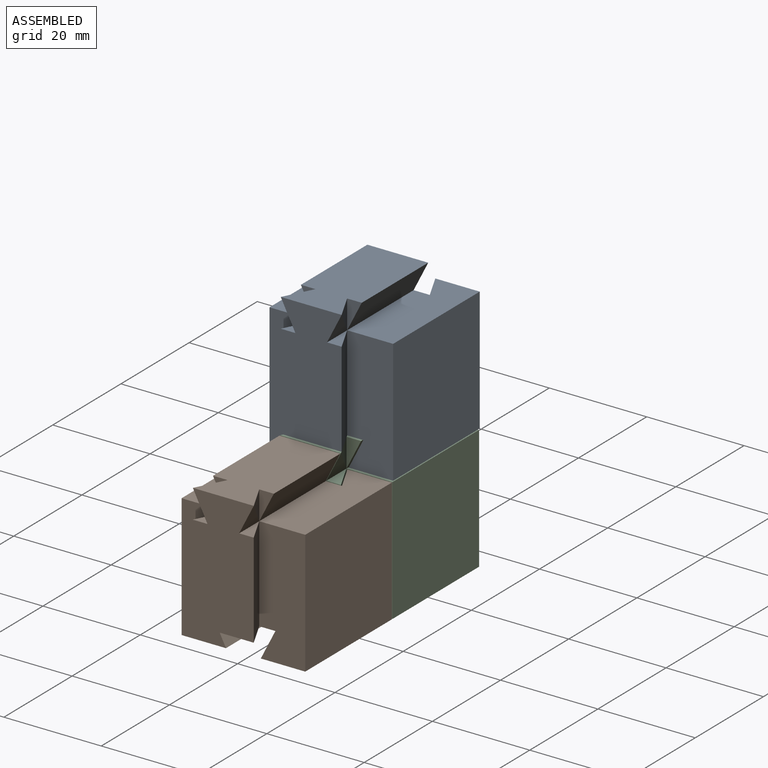
[diagram: assembled view]
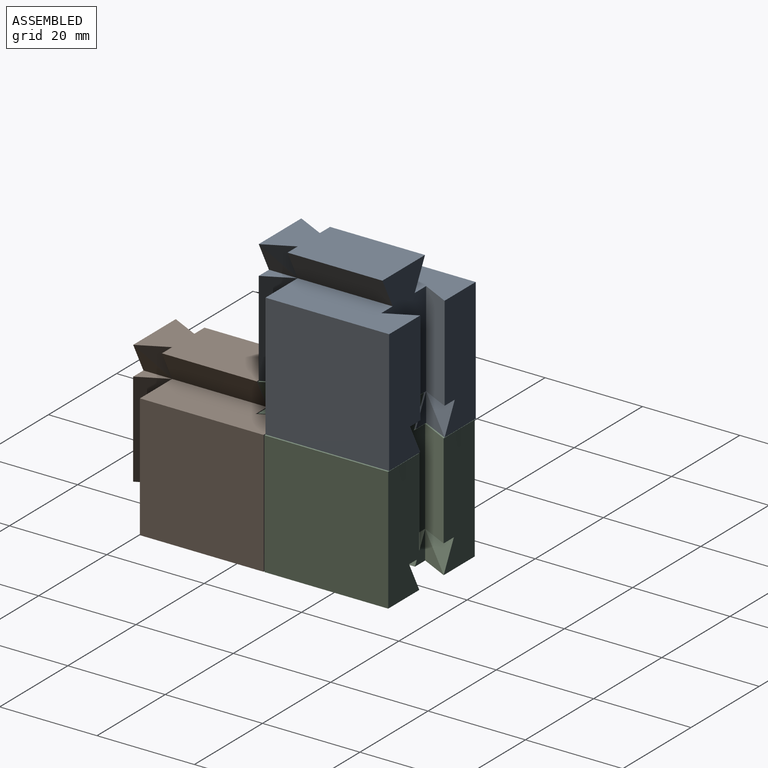
[diagram: assembled view, second angle]
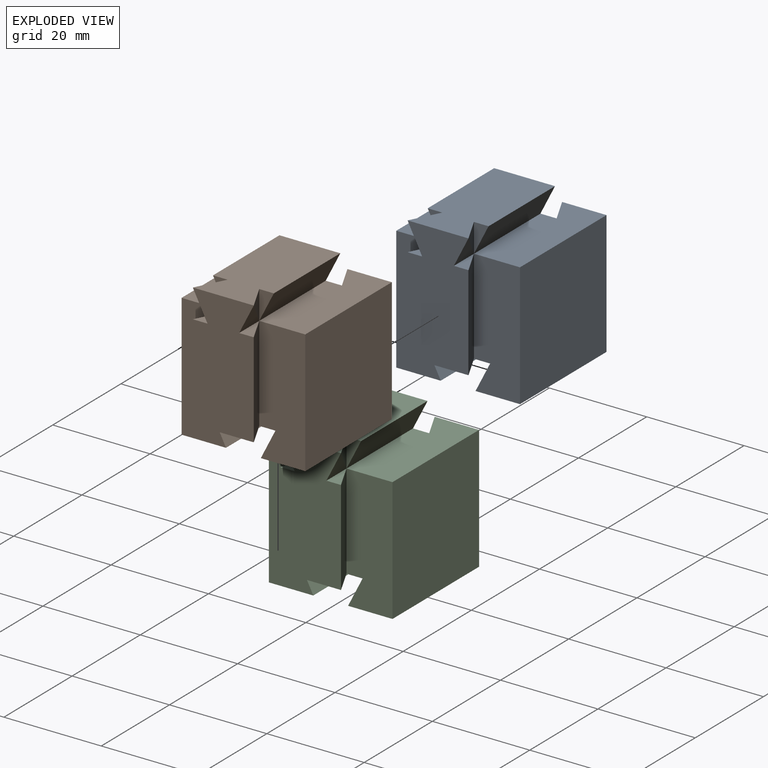
[diagram: exploded view]
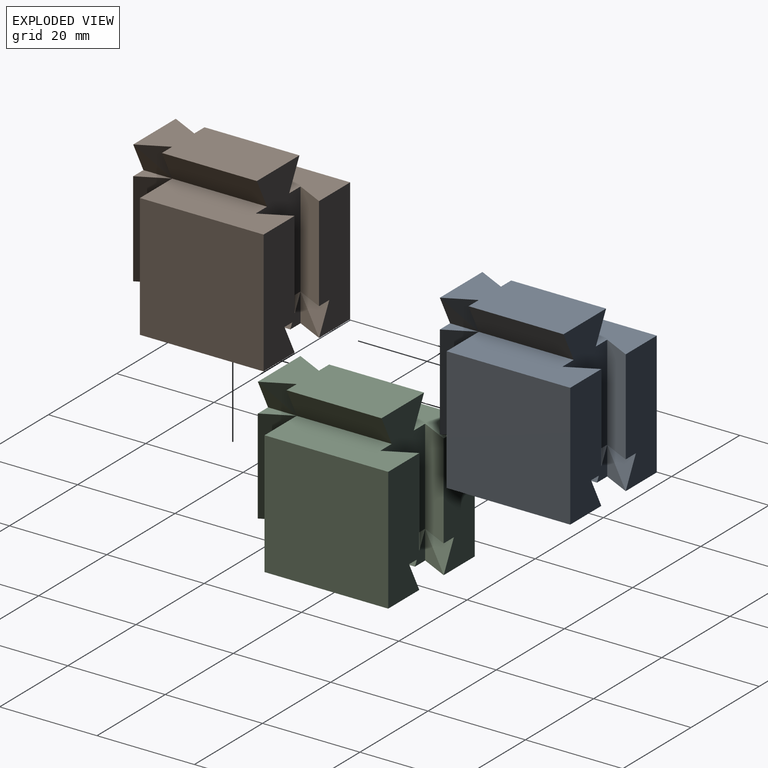
[diagram: exploded view, second angle]
ASSEMBLY  parts=3 mates=2
PART A: 38 faces, bbox 25.4x31.3x31.3 mm
  f0: plane 25.4x9.45mm, normal (0,-1,0), area 229.3mm2, adj f9,f17,f18,f21,f23,f36
  f1: plane 25.4x9.12mm, normal (0,1,0), area 222.9mm2, adj f5,f7,f20,f22,f32,f33
  f2: plane 25.4x13.15mm, normal (0,1,0), area 312.5mm2, adj f6,f7,f9,f18,f19,f20,f29,f30
  f3: plane 5.9x3mm, normal (0,1,0), area 8.8mm2, adj f5,f8,f37
  f4: plane 25.4x9.12mm, normal (0,1,0), area 222.9mm2, adj f6,f9,f21,f23,f34,f35
  f5: plane 25.4x9.12mm, normal (0,0,-1), area 222.9mm2, adj f1,f3,f8,f11,f22,f37
  f6: plane 19.5x5.9mm, normal (0.89,-0.45,0), area 129.1mm2, adj f2,f4,f9,f35
  f7: plane 19.5x5.9mm, normal (-0.89,-0.45,0), area 129.1mm2, adj f1,f2,f20,f33
  f8: plane 5.9x5.9mm, normal (-0.89,-0.45,0), area 19.5mm2, adj f3,f5,f32
  f9: plane 25.4x9.45mm, normal (0,0,1), area 229.3mm2, adj f0,f2,f4,f6,f21,f29
  f10: plane 5.9x3mm, normal (0,1,0), area 8.9mm2, adj f23,f31,f36
  f11: plane 25.4x9.45mm, normal (0,-1,0), area 229.3mm2, adj f5,f15,f18,f20,f22,f37
  f12: plane 5.9x3mm, normal (0,-1,0), area 8.8mm2, adj f16,f19,f29
  f13: plane 5.9x3mm, normal (0,-1,0), area 8.8mm2, adj f19,f24,f30
  f14: plane 25.4x12.5mm, normal (0,-1,0), area 299.8mm2, adj f15,f17,f18,f19,f25,f26,f27,f28
  f15: plane 19.5x5.9mm, normal (0.89,0.45,0), area 129.1mm2, adj f11,f14,f18,f28
  f16: plane 5.9x5.9mm, normal (-0.89,0.45,0), area 19.5mm2, adj f12,f19,f26
  f17: plane 19.5x5.9mm, normal (-0.89,0.45,0), area 129.1mm2, adj f0,f14,f18,f25
  f18: plane 25.4x13.15mm, normal (0,0,-1), area 312.5mm2, adj f0,f2,f11,f14,f15,f17,f36,f37
  f19: plane 25.4x12.5mm, normal (0,0,1), area 299.8mm2, adj f2,f12,f13,f14,f16,f24,f29,f30
  f20: plane 25.4x9.45mm, normal (0,0,1), area 229.3mm2, adj f1,f2,f7,f11,f22,f30
  f21: plane 25.4x25.4mm, normal (-1,0,0), area 645.2mm2, adj f0,f4,f9,f23
  f22: plane 25.4x25.4mm, normal (1,0,0), area 645.2mm2, adj f1,f5,f11,f20
  f23: plane 25.4x9.12mm, normal (0,0,-1), area 222.9mm2, adj f0,f4,f10,f21,f31,f36
  f24: plane 5.9x5.9mm, normal (0.89,0.45,0), area 19.5mm2, adj f13,f19,f27
  f25: plane 5.9x3mm, normal (0,0,1), area 8.8mm2, adj f14,f17,f26
  f26: plane 5.9x5.9mm, normal (-0.89,0,-0.45), area 19.5mm2, adj f14,f16,f25
  f27: plane 5.9x5.9mm, normal (0.89,0,-0.45), area 19.5mm2, adj f14,f24,f28
  f28: plane 5.9x3mm, normal (0,0,1), area 8.9mm2, adj f14,f15,f27
  f29: plane 19.5x5.9mm, normal (-0.89,0,-0.45), area 129.1mm2, adj f2,f9,f12,f19
  f30: plane 19.5x5.9mm, normal (0.89,0,-0.45), area 129.1mm2, adj f2,f13,f19,f20
  f31: plane 5.9x5.9mm, normal (0.89,-0.45,0), area 19.5mm2, adj f10,f23,f34
  f32: plane 5.9x5.9mm, normal (-0.89,0,0.45), area 19.5mm2, adj f1,f8,f33
  f33: plane 5.9x3mm, normal (0,0,-1), area 8.9mm2, adj f1,f7,f32
  f34: plane 5.9x5.9mm, normal (0.89,0,0.45), area 19.5mm2, adj f4,f31,f35
  f35: plane 5.9x3mm, normal (0,0,-1), area 8.8mm2, adj f4,f6,f34
  f36: plane 19.5x5.9mm, normal (0.89,0,0.45), area 129.1mm2, adj f0,f10,f18,f23
  f37: plane 19.5x5.9mm, normal (-0.89,0,0.45), area 129.1mm2, adj f3,f5,f11,f18
PART B: same geometry as A
PART C: same geometry as A
PLACE A t=(0,0.19,25.6)mm
PLACE B t=(0,-25.6,0)mm
PLACE C at identity fixed
MATE slider C.f2 <-> A.f2  axis (0,1,0) through (0,6.8,18.6)mm
MATE slider B.f18 <-> C.f18  axis (0,0,-1) through (0,-18.8,-6.8)mm
